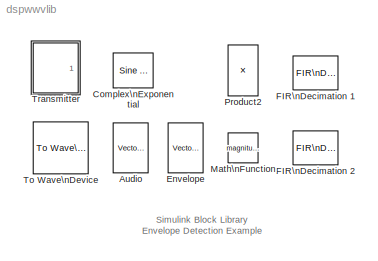
MODEL dspwwvlib
KIND library
BLOCK [Reference] Audio  REF=dspsnks4/Vector\nScope
  AxisGrid = on
  AxisLegend = off
  AxisProperties = on
  AxisZoom = off
  DisplayProperties = off
  Domain = Time
  FigPos = [430 331 524 241]
  FrameNumber = on
  HorizSpan = 40
  InheritXIncr = on
  LineProperties = off
  Memory = off
  OpenScopeAtSimStart = on
  OpenScopeImmediately = off
  Ports = [1]
  ScopeProperties = off
  SourceBlock = dspsnks4/Vector\nScope
  SourceType = Vector Scope
  XIncr = 1
  XLabel = Time
  XRange = [0...Fs/2]
  XUnits = Hertz
  YLabel = Amplitude
  YMax = 1.1
  YMin = -1.1
  YUnits = dB
BLOCK [Reference] Complex\nExponential  REF=dspsrcs4/Sine Wave
  Amplitude = 1
  CompMethod = Table lookup
  Frequency = 100
  OutComplex = Complex
  Phase = 0
  Ports = [0, 1]
  ResetState = Restart at time zero
  SampleMode = Discrete
  SampleTime = 1/8000
  SamplesPerFrame = 80
  SourceBlock = dspsrcs4/Sine Wave
  SourceType = Sine Wave
  TableSize = Memory
  additionalParams = on
  allowOverrides = on
  dataType = single
  fracBitsMode = Best precision
  numFracBits = 14
  udDataType = sfix(16)
  wordLen = 16
BLOCK [Reference] Envelope  REF=dspsnks4/Vector\nScope
  AxisGrid = on
  AxisLegend = off
  AxisProperties = off
  AxisZoom = off
  DisplayProperties = off
  Domain = Time
  FigPos = [426 60 526 225]
  FrameNumber = on
  HorizSpan = 40
  InheritXIncr = on
  LineProperties = off
  Memory = off
  OpenScopeAtSimStart = on
  OpenScopeImmediately = off
  Ports = [1]
  ScopeProperties = off
  SourceBlock = dspsnks4/Vector\nScope
  SourceType = Vector Scope
  XIncr = 1
  XLabel = Time
  XRange = [0...Fs/2]
  XUnits = Hertz
  YLabel = Amplitude
  YMax = 0.5
  YMin = -0.1
  YUnits = dB
BLOCK [Reference] FIR\nDecimation 1  REF=dspmlti3/FIR\nDecimation
  D = 20
  Ports = [1, 1]
  SourceBlock = dspmlti3/FIR\nDecimation
  SourceType = FIR Decimation
  accumFracLength = 30
  accumMode = Same as output
  accumWordLength = 32
  additionalParams = off
  allowOverrides = on
  firstCoeffFracLength = 15
  firstCoeffMode = Same as input
  firstCoeffWordLength = 16
  framing = Maintain input frame rate
  h = fir1(31, 1/40)
  outputBufInitCond = 0
  outputFracLength = 30
  outputMode = Same as input
  outputWordLength = 32
  overflowMode = off
  prodOutputFracLength = 30
  prodOutputMode = Same as accumulator
  prodOutputWordLength = 32
  roundingMode = Floor
BLOCK [Reference] FIR\nDecimation 2  REF=dspmlti3/FIR\nDecimation
  D = 4
  Ports = [1, 1]
  SourceBlock = dspmlti3/FIR\nDecimation
  SourceType = FIR Decimation
  accumFracLength = 30
  accumMode = Same as output
  accumWordLength = 32
  additionalParams = off
  allowOverrides = on
  firstCoeffFracLength = 15
  firstCoeffMode = Same as input
  firstCoeffWordLength = 16
  framing = Maintain input frame rate
  h = fir1(15, 1/8)
  outputBufInitCond = 0
  outputFracLength = 30
  outputMode = Same as input
  outputWordLength = 32
  overflowMode = off
  prodOutputFracLength = 30
  prodOutputMode = Same as accumulator
  prodOutputWordLength = 32
  roundingMode = Floor
BLOCK [Math] Math\nFunction
  Operator = magnitude^2
  Ports = [1, 1]
BLOCK [Product] Product2
  Ports = [2, 1]
BLOCK [Reference] To Wave\nDevice  REF=dspwin32/To Wave\nDevice
  Ports = [1]
  SourceBlock = dspwin32/To Wave\nDevice
  SourceType = To Wave Device
  bufDuration = .25
  enable24Bit = off
  initDelay = .1
  useDefaultDevice = on
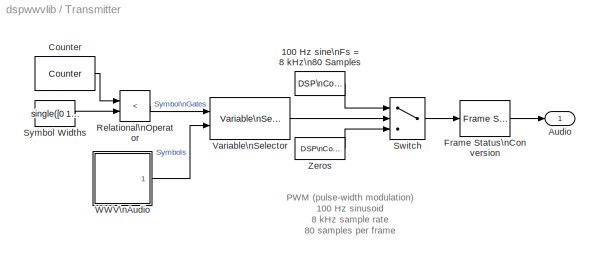
BLOCK [SubSystem] Transmitter
  Ports = [0, 1]
  TreatAsAtomicUnit = off
BLOCK [Reference] Transmitter/100 Hz sine\nFs = 8 kHz\n80 Samples  REF=dspsrcs4/DSP\nConstant
  FramebasedOutput = off
  InterpretAs1D = on
  Ports = [0, 1]
  SampleMode = Continuous
  SourceBlock = dspsrcs4/DSP\nConstant
  SourceType = DSP Constant
  Ts = 1
  Value = single(sin(2*pi*100*(0:79)/8000))
  additionalParams = off
  allowOverrides = on
  continuousOutput = Sample-based (interpret vectors as 1-D)
  dataType = Inherit from 'Constant value'
  discreteOutput = Sample-based (interpret vectors as 1-D)
  fracBitsMode = Best precision
  framePeriod = 1
  numFracBits = 15
  sampTime = 1
  udDataType = sfix(16)
  wordLen = 16
BLOCK [Outport] Transmitter/Audio
BLOCK [Reference] Transmitter/Counter  REF=dspswit3/Counter
  CntDtype = Single
  CountEvent = Free running
  CounterSize = User defined
  Direction = Up
  HitDtype = Logical
  HitValue = 32
  InitialCount = 0
  MaxCount = 99
  Output = Count
  Ports = [0, 1]
  ResetInput = off
  SamplesPerFrame = 1
  SourceBlock = dspswit3/Counter
  SourceType = Counter
  Ts = 1/100
BLOCK [Reference] Transmitter/Frame Status\nConversion  REF=dspsigattribs/Frame Status\nConversion
  Ports = [1, 1]
  SourceBlock = dspsigattribs/Frame Status\nConversion
  SourceType = Frame Status Conversion
  growRefPort = off
  outframe = Frame-based
BLOCK [RelationalOperator] Transmitter/Relational\nOperator
  Operator = <
BLOCK [Switch] Transmitter/Switch
  Threshold = 1
BLOCK [Constant] Transmitter/Symbol Widths
  Value = single([0 17 47 77])
BLOCK [Reference] Transmitter/Variable\nSelector  REF=dspindex/Variable\nSelector
  Elements = [1 3]
  IdxMode = Variable
  Ports = [2, 1]
  SourceBlock = dspindex/Variable\nSelector
  SourceType = Variable Selector
  ZerOneIdxMode = Zero-based
  errmode = Clip and Warn
  rowsOrCols = Rows
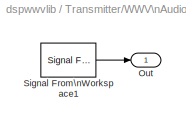
BLOCK [SubSystem] Transmitter/WWV\nAudio
  MaskCallbackString = ||||||||
  MaskDescription = Generate 8 kHz sampled test data in WWV IRIG format.
  MaskDisplay = plot(x,y)
  MaskEnableString = on,on,on,on,on,on,on,on,on
  MaskHelp = Generate 8 kHz sampled test data in WWV IRIG format.
  MaskIconFrame = on
  MaskIconOpaque = on
  MaskIconRotate = none
  MaskIconUnits = normalized
  MaskInitialization = s.utc=utc;s.ut1=ut1;s.day=day;s.yr=yr;\ns.dst=dst;s.dst2=dst2;s.leap=leap; s.mode=outp;\n[b,Ts]=dspwwvgen(s);\n\nif strcmp(outp,'Audio'),\n\nx = [.1 .2 .2 .1 .1 NaN .2 .35 .35 .2 .2 NaN .35 .4 .4 .35 .35];\ny = [.4 .4 .6 .6 .4 NaN .4 .1  .9  .6 .4 NaN .1  .1 .9 .9  .1 ];\na=.5;  s=5*pi/180;  t = -s:pi/180:s; x = [x NaN a*cos(t)]; y = [y NaN a*sin(t)+.5];\na=.65; s=10*pi/180; t = -s:pi/180:s; x = [...<+219ch>
  MaskPromptString = Output:|Time (hh.mm):|UT1 Correction ([-0.7, +0.7]):|Day of year:|Year:|Daylight Savings|Daylight Savings #2|Leap second|Samples per frame:
  MaskStyleString = popup(Symbols|Audio),edit,edit,edit,edit,checkbox,checkbox,checkbox,edit
  MaskToolTipString = on,on,on,on,on,on,on,on,on
  MaskTunableValueString = on,on,on,on,on,on,on,on,on
  MaskType = WWV Audio Synthesizer
  MaskValueString = Symbols|12.34|+0.2|336|2002|off|off|on|1
  MaskVarAliasString = ,,,,,,,,
  MaskVariables = outp=&1;utc=@2;ut1=@3;day=@4;yr=@5;dst=@6;dst2=@7;leap=@8;bufsize=@9;
  MaskVisibilityString = on,on,on,on,on,on,on,on,on
  Ports = [0, 1]
  TreatAsAtomicUnit = off
BLOCK [Outport] Transmitter/WWV\nAudio/Out
  InitialOutput = 0
BLOCK [Reference] Transmitter/WWV\nAudio/Signal From\nWorkspace1  REF=dspsrcs4/Signal From\nWorkspace
  OutputAfterFinalValue = Setting to zero
  Ports = [0, 1]
  SourceBlock = dspsrcs4/Signal From\nWorkspace
  SourceType = Signal From Workspace
  Ts = Ts
  X = int8(b)
  nsamps = bufsize
BLOCK [Reference] Transmitter/Zeros  REF=dspsrcs4/DSP\nConstant
  FramebasedOutput = off
  InterpretAs1D = on
  Ports = [0, 1]
  SampleMode = Continuous
  SourceBlock = dspsrcs4/DSP\nConstant
  SourceType = DSP Constant
  Ts = 1
  Value = single(zeros(80,1))
  additionalParams = off
  allowOverrides = on
  continuousOutput = Sample-based (interpret vectors as 1-D)
  dataType = Inherit from 'Constant value'
  discreteOutput = Sample-based (interpret vectors as 1-D)
  fracBitsMode = Best precision
  framePeriod = 1
  numFracBits = 15
  sampTime = 1
  udDataType = sfix(16)
  wordLen = 16
ANNOTATION (root): Simulink Block Library\nEnvelope Detection Example
ANNOTATION Transmitter: PWM (pulse-width modulation)\n100 Hz sinusoid\n8 kHz sample rate\n80 samples per frame
LINE Transmitter/100 Hz sine\nFs = 8 kHz\n80 Samples:1 -> Transmitter/Switch:1
LINE Transmitter/Counter:1 -> Transmitter/Relational\nOperator:1
LINE Transmitter/Frame Status\nConversion:1 -> Transmitter/Audio:1
LINE Transmitter/Relational\nOperator:1 -> Transmitter/Variable\nSelector:1
LINE Transmitter/Switch:1 -> Transmitter/Frame Status\nConversion:1
LINE Transmitter/Symbol Widths:1 -> Transmitter/Relational\nOperator:2
LINE Transmitter/Variable\nSelector:1 -> Transmitter/Switch:2
LINE Transmitter/WWV\nAudio/Signal From\nWorkspace1:1 -> Transmitter/WWV\nAudio/Out:1
LINE Transmitter/WWV\nAudio:1 -> Transmitter/Variable\nSelector:2
LINE Transmitter/Zeros:1 -> Transmitter/Switch:3
